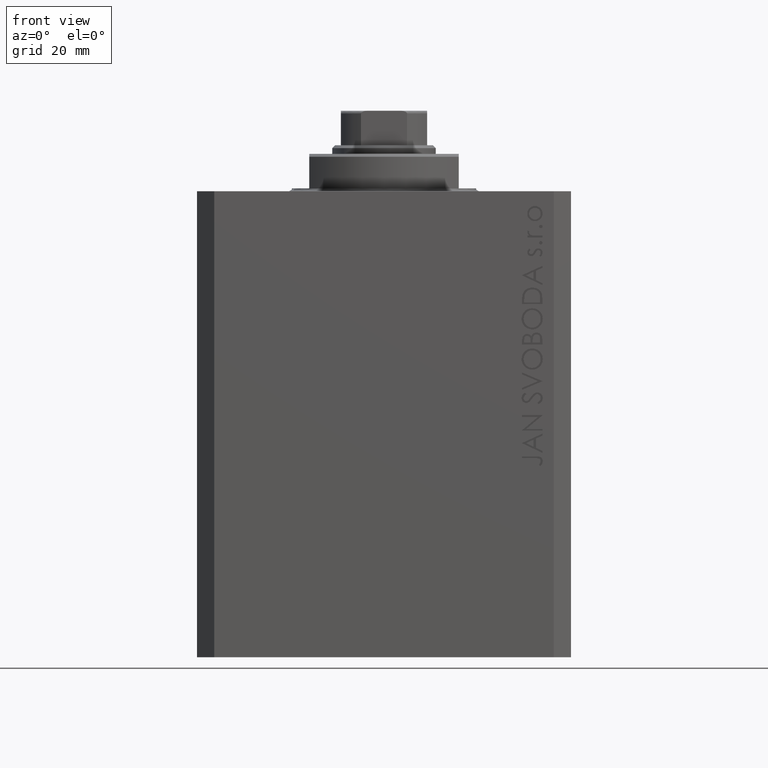
[diagram: clean part render]
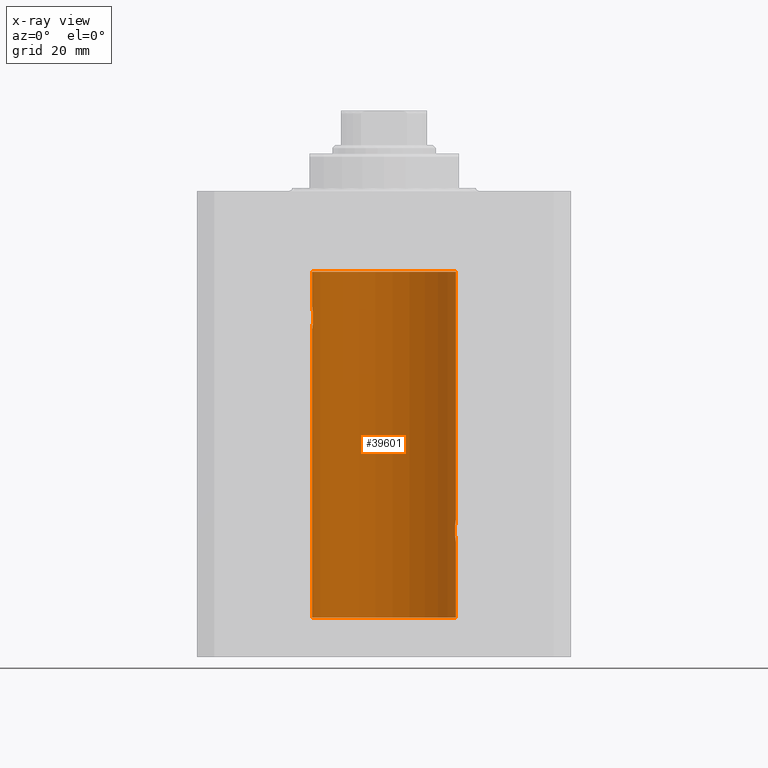
[diagram: x-ray — body ghosted, one internal face saturated and labeled with its STEP entity id]
A machine part, front view, then the same camera in x-ray: the body is ghosted and one INTERNAL B-rep face — a face not visible from any outside direction — is saturated and labeled: STEP entity #39601.
In plain terms, the highlighted cylindrical surface (partial cylindrical patch) has radius 12.5 mm, axis along (0, 0, 1).
Its self-contained STEP definition (entity closure, byte-faithful):
#397 = DIRECTION ( 'NONE',  ( -0.000000000000000000, -0.000000000000000000, 1.000000000000000000 ) ) ;
#454 = ORIENTED_EDGE ( 'NONE', *, *, #22596, .T. ) ;
#797 = CARTESIAN_POINT ( 'NONE',  ( 12.43016561391612029, 1.322713721413891319, -60.50578877836697700 ) ) ;
#1054 = DIRECTION ( 'NONE',  ( -0.000000000000000000, -0.000000000000000000, 1.000000000000000000 ) ) ;
#1593 = VERTEX_POINT ( 'NONE', #6586 ) ;
#1613 = VECTOR ( 'NONE', #9795, 1000.000000000000000 ) ;
#1983 = CARTESIAN_POINT ( 'NONE',  ( -12.33897869807161385, 1.999901172190678089, -21.73788193668374547 ) ) ;
#3208 = DIRECTION ( 'NONE',  ( 0.000000000000000000, 0.000000000000000000, 1.000000000000000000 ) ) ;
#3918 = CARTESIAN_POINT ( 'NONE',  ( 12.46901623405144299, 0.8878913781257963267, -60.79689651717550447 ) ) ;
#4169 = EDGE_CURVE ( 'NONE', #33214, #20910, #21291, .T. ) ;
#4591 = B_SPLINE_CURVE_WITH_KNOTS ( 'NONE', 3,
 ( #11066, #40413, #7487, #22039, #36598, #3918, #33017, #37293, #797, #14899, #29436, #22277, #43991, #22742 ),
 .UNSPECIFIED., .F., .F.,
 ( 4, 2, 2, 2, 2, 2, 4 ),
 ( 4.122900576430715099E-18, 0.0003915305205218091544, 0.0007830610410436140804, 0.001174591561565418952, 0.001566122082087223824, 0.002349183123130847879, 0.003132244164174471934 ),
 .UNSPECIFIED. ) ;
#4650 = CARTESIAN_POINT ( 'NONE',  ( 12.50000000000000000, 0.000000000000000000, -74.09999999999999432 ) ) ;
#4858 = CARTESIAN_POINT ( 'NONE',  ( -12.40913174964213184, 1.507394620545641439, -23.32102833500698225 ) ) ;
#5101 = CARTESIAN_POINT ( 'NONE',  ( -12.48394649977302073, 0.6448065707253024526, -23.89773031393659153 ) ) ;
#5569 = CARTESIAN_POINT ( 'NONE',  ( -12.37018026341338839, 1.797558627508998086, -22.88656313533016373 ) ) ;
#5776 = VECTOR ( 'NONE', #1054, 1000.000000000000000 ) ;
#6586 = CARTESIAN_POINT ( 'NONE',  ( 12.50000000000000000, -7.266276684081261841E-23, -57.00000000000000000 ) ) ;
#6880 = CARTESIAN_POINT ( 'NONE',  ( -12.50000000000000000, 1.530808498934191521E-15, -74.09999999999999432 ) ) ;
#7487 = CARTESIAN_POINT ( 'NONE',  ( 12.49789833780794268, 0.2625555164371063399, -60.98698170822146380 ) ) ;
#8663 = CARTESIAN_POINT ( 'NONE',  ( -12.43034574091277911, 1.321095788880539024, -23.50733550364322255 ) ) ;
#9377 = CARTESIAN_POINT ( 'NONE',  ( -12.50000000000000000, 1.530808426276628993E-15, -23.99999999999999645 ) ) ;
#9795 = DIRECTION ( 'NONE',  ( -0.000000000000000000, -0.000000000000000000, 1.000000000000000000 ) ) ;
#10244 = ORIENTED_EDGE ( 'NONE', *, *, #4169, .F. ) ;
#10436 = VERTEX_POINT ( 'NONE', #28903 ) ;
#10687 = CYLINDRICAL_SURFACE ( 'NONE', #32800, 12.50000000000000000 ) ;
#10784 = CARTESIAN_POINT ( 'NONE',  ( 12.49788668346400122, 0.2632864803365719264, -57.01308975838332316 ) ) ;
#11066 = CARTESIAN_POINT ( 'NONE',  ( 12.50000000000000000, -3.070791583031755813E-15, -61.00000000000000711 ) ) ;
#12494 = CARTESIAN_POINT ( 'NONE',  ( -12.39864157855465088, 1.590288205413973532, -23.21980790594580313 ) ) ;
#12972 = CARTESIAN_POINT ( 'NONE',  ( -12.49788564268284041, 0.2633501011236127343, -23.98690384766255335 ) ) ;
#13115 = DIRECTION ( 'NONE',  ( 1.000000000000000000, 0.000000000000000000, 0.000000000000000000 ) ) ;
#13215 = CARTESIAN_POINT ( 'NONE',  ( -12.33895470450623044, 2.000049200055401766, -22.12992629360264729 ) ) ;
#13299 = EDGE_CURVE ( 'NONE', #45409, #36148, #4591, .T. ) ;
#13399 = VERTEX_POINT ( 'NONE', #23926 ) ;
#13623 = LINE ( 'NONE', #42477, #1613 ) ;
#14238 = ORIENTED_EDGE ( 'NONE', *, *, #37211, .T. ) ;
#14329 = EDGE_CURVE ( 'NONE', #27243, #20910, #22745, .T. ) ;
#14749 = FACE_OUTER_BOUND ( 'NONE', #23037, .T. ) ;
#14899 = CARTESIAN_POINT ( 'NONE',  ( 12.39869754437268767, 1.598954131913735033, -60.22932152813013573 ) ) ;
#15495 = ORIENTED_EDGE ( 'NONE', *, *, #20346, .T. ) ;
#16316 = CARTESIAN_POINT ( 'NONE',  ( -12.49789934882883458, 0.2624928479599910047, -20.01301208516349917 ) ) ;
#16562 = CARTESIAN_POINT ( 'NONE',  ( -12.44082361696003503, 1.219754986802281449, -20.40963319990594016 ) ) ;
#18151 = EDGE_CURVE ( 'NONE', #36148, #1593, #20258, .T. ) ;
#18265 = CARTESIAN_POINT ( 'NONE',  ( 12.50000000000000000, -3.070791583031755813E-15, -61.00000000000000711 ) ) ;
#18888 = CARTESIAN_POINT ( 'NONE',  ( 12.50000000000000000, -7.266276684081261841E-23, -57.00000000000000000 ) ) ;
#19416 = CARTESIAN_POINT ( 'NONE',  ( -12.44076681548080288, 1.220297236145718944, -23.58991408680628155 ) ) ;
#19760 = ORIENTED_EDGE ( 'NONE', *, *, #13299, .T. ) ;
#20258 = B_SPLINE_CURVE_WITH_KNOTS ( 'NONE', 3,
 ( #32963, #43934, #36777, #40119, #22450, #29618, #29150, #43699, #36306, #25560, #32497, #21755, #36078, #40596, #39660, #10784, #33195, #18888 ),
 .UNSPECIFIED., .F., .F.,
 ( 4, 2, 2, 2, 2, 2, 2, 2, 4 ),
 ( 0.003132244164174471934, 0.003523586189974247697, 0.003914928215774023459, 0.004306270241573798355, 0.004697612267373574985, 0.005088954293173349880, 0.005480296318973125642, 0.005871638344772901405, 0.006262980370572677168 ),
 .UNSPECIFIED. ) ;
#20346 = EDGE_CURVE ( 'NONE', #13399, #25780, #31738, .T. ) ;
#20402 = EDGE_CURVE ( 'NONE', #27243, #25780, #20755, .T. ) ;
#20755 = LINE ( 'NONE', #6880, #27932 ) ;
#20910 = VERTEX_POINT ( 'NONE', #28877 ) ;
#21291 = LINE ( 'NONE', #47047, #29739 ) ;
#21755 = CARTESIAN_POINT ( 'NONE',  ( 12.46011632531799407, 1.003644408234889429, -57.26516799687670556 ) ) ;
#22039 = CARTESIAN_POINT ( 'NONE',  ( 12.48989642018887203, 0.5185418732824298438, -60.93601292187604912 ) ) ;
#22277 = CARTESIAN_POINT ( 'NONE',  ( 12.34779119491631150, 1.947363444907014518, -59.52502775168253635 ) ) ;
#22450 = CARTESIAN_POINT ( 'NONE',  ( 12.35520276972935250, 1.897773362058245761, -58.35528278634336630 ) ) ;
#22596 = EDGE_CURVE ( 'NONE', #1593, #13399, #23719, .T. ) ;
#22742 = CARTESIAN_POINT ( 'NONE',  ( 12.33896267925302581, 2.000000000000254463, -59.00000000000000711 ) ) ;
#22745 = B_SPLINE_CURVE_WITH_KNOTS ( 'NONE', 3,
 ( #34440, #45176, #16316, #30850, #41583, #45405, #42065, #16562, #34670, #30384, #22988, #34916, #1983, #13215, #37538, #37768, #44937, #5569, #41350, #12494, #4858, #8663, #19416, #31092, #33962, #5101, #45644, #12972, #27515, #9377 ),
 .UNSPECIFIED., .F., .F.,
 ( 4, 2, 2, 2, 2, 2, 2, 2, 2, 2, 2, 2, 2, 2, 4 ),
 ( 1.814683826656258666E-20, 0.0003914362731607577369, 0.0007828725463215154739, 0.001174308819482273265, 0.001565745092643030948, 0.002348617638964546530, 0.003131490185286061895, 0.003522926458446825216, 0.003914362731607588103, 0.004305799004768351423, 0.004697235277929114744, 0.005088671551089878065, 0.005480107824250641385, 0.005871544097411404706, 0.006262980370572168026 ),
 .UNSPECIFIED. ) ;
#22988 = CARTESIAN_POINT ( 'NONE',  ( -12.37764291807175354, 1.747608771958140794, -20.99316879552500481 ) ) ;
#23037 = EDGE_LOOP ( 'NONE', ( #10244, #44873, #14238, #19760, #23649, #454, #15495, #42558, #36630 ) ) ;
#23649 = ORIENTED_EDGE ( 'NONE', *, *, #18151, .T. ) ;
#23719 = LINE ( 'NONE', #4650, #5776 ) ;
#23926 = CARTESIAN_POINT ( 'NONE',  ( 12.50000000000000000, 0.000000000000000000, -13.99999999999999822 ) ) ;
#24631 = CARTESIAN_POINT ( 'NONE',  ( -12.50000000000000000, 1.530808498934191521E-15, -74.09999999999999432 ) ) ;
#25049 = CIRCLE ( 'NONE', #39528, 12.50000000000000000 ) ;
#25091 = DIRECTION ( 'NONE',  ( -0.000000000000000000, -0.000000000000000000, 1.000000000000000000 ) ) ;
#25368 = DIRECTION ( 'NONE',  ( 1.000000000000000000, 0.000000000000000000, 0.000000000000000000 ) ) ;
#25560 = CARTESIAN_POINT ( 'NONE',  ( 12.43037348241797879, 1.320834183883846435, -57.49243837704293725 ) ) ;
#25780 = VERTEX_POINT ( 'NONE', #36938 ) ;
#27243 = VERTEX_POINT ( 'NONE', #42984 ) ;
#27515 = CARTESIAN_POINT ( 'NONE',  ( -12.50000000000000533, 0.1306394121199390135, -24.00000000000000711 ) ) ;
#27932 = VECTOR ( 'NONE', #39567, 1000.000000000000000 ) ;
#28041 = CARTESIAN_POINT ( 'NONE',  ( 0.000000000000000000, 0.000000000000000000, -74.09999999999999432 ) ) ;
#28877 = CARTESIAN_POINT ( 'NONE',  ( -12.50000000000000000, 1.530808426276628993E-15, -23.99999999999999645 ) ) ;
#28903 = CARTESIAN_POINT ( 'NONE',  ( 12.50000000000000000, 0.000000000000000000, -74.09999999999999432 ) ) ;
#29150 = CARTESIAN_POINT ( 'NONE',  ( 12.37925647381943506, 1.734744884174225898, -57.99620732598649653 ) ) ;
#29282 = DIRECTION ( 'NONE',  ( 1.000000000000000000, 0.000000000000000000, 0.000000000000000000 ) ) ;
#29436 = CARTESIAN_POINT ( 'NONE',  ( 12.37760587642916477, 1.747868572747724114, -60.00639653169001519 ) ) ;
#29618 = CARTESIAN_POINT ( 'NONE',  ( 12.37021546997940113, 1.797317011867410219, -58.11295119741077997 ) ) ;
#29739 = VECTOR ( 'NONE', #25091, 1000.000000000000000 ) ;
#30050 = CARTESIAN_POINT ( 'NONE',  ( 12.33896267925302581, 2.000000000000254463, -59.00000000000000711 ) ) ;
#30384 = CARTESIAN_POINT ( 'NONE',  ( -12.39873273758732175, 1.598680238462371062, -20.77033506126851137 ) ) ;
#30850 = CARTESIAN_POINT ( 'NONE',  ( -12.48990118705761532, 0.5184196815546056047, -20.06395648222637007 ) ) ;
#31092 = CARTESIAN_POINT ( 'NONE',  ( -12.46009879577771606, 1.003863686549169465, -23.73470742397611843 ) ) ;
#31268 = EDGE_CURVE ( 'NONE', #10436, #33214, #25049, .T. ) ;
#31738 = CIRCLE ( 'NONE', #35557, 12.50000000000000000 ) ;
#32497 = CARTESIAN_POINT ( 'NONE',  ( 12.44079117518645461, 1.220047488436375227, -57.40989676335083658 ) ) ;
#32800 = AXIS2_PLACEMENT_3D ( 'NONE', #40020, #397, #29282 ) ;
#32963 = CARTESIAN_POINT ( 'NONE',  ( 12.33896267925302581, 2.000000000000254463, -59.00000000000000711 ) ) ;
#33017 = CARTESIAN_POINT ( 'NONE',  ( 12.46019522898365395, 1.002712894177340885, -60.73540896027603253 ) ) ;
#33195 = CARTESIAN_POINT ( 'NONE',  ( 12.50000000000000000, 0.1306079576516677443, -56.99999999999998579 ) ) ;
#33214 = VERTEX_POINT ( 'NONE', #24631 ) ;
#33962 = CARTESIAN_POINT ( 'NONE',  ( -12.46909283808506430, 0.8868029758979402155, -23.79742491916155345 ) ) ;
#34440 = CARTESIAN_POINT ( 'NONE',  ( -12.50000000000000000, 1.867773856434666690E-17, -20.00000000000000000 ) ) ;
#34670 = CARTESIAN_POINT ( 'NONE',  ( -12.43019346654084956, 1.322451657002078340, -20.49398366327208620 ) ) ;
#34916 = CARTESIAN_POINT ( 'NONE',  ( -12.34781876294798053, 1.947190906025043633, -21.47436412829509678 ) ) ;
#35557 = AXIS2_PLACEMENT_3D ( 'NONE', #38863, #43149, #13115 ) ;
#36078 = CARTESIAN_POINT ( 'NONE',  ( 12.46910683544638232, 0.8866026273585057016, -57.20247863689694867 ) ) ;
#36148 = VERTEX_POINT ( 'NONE', #30050 ) ;
#36306 = CARTESIAN_POINT ( 'NONE',  ( 12.40916530024876963, 1.507117913375724649, -57.67865955049006743 ) ) ;
#36598 = CARTESIAN_POINT ( 'NONE',  ( 12.48390005916862933, 0.6457215011736597843, -60.89742771554266199 ) ) ;
#36630 = ORIENTED_EDGE ( 'NONE', *, *, #14329, .T. ) ;
#36777 = CARTESIAN_POINT ( 'NONE',  ( 12.34110728646152211, 1.986893050944461780, -58.73661347764981855 ) ) ;
#36938 = CARTESIAN_POINT ( 'NONE',  ( -12.50000000000000000, 1.530808498934191521E-15, -13.99999999999999822 ) ) ;
#37211 = EDGE_CURVE ( 'NONE', #10436, #45409, #13623, .T. ) ;
#37293 = CARTESIAN_POINT ( 'NONE',  ( 12.44079900692650931, 1.220007525301745277, -60.59017579083664629 ) ) ;
#37538 = CARTESIAN_POINT ( 'NONE',  ( -12.34109209020652465, 1.986986967296539897, -22.26269462454597914 ) ) ;
#37768 = CARTESIAN_POINT ( 'NONE',  ( -12.34922241902463114, 1.935814255713574239, -22.51937350851555308 ) ) ;
#38863 = CARTESIAN_POINT ( 'NONE',  ( 0.000000000000000000, 0.000000000000000000, -13.99999999999999822 ) ) ;
#39528 = AXIS2_PLACEMENT_3D ( 'NONE', #28041, #3208, #25368 ) ;
#39567 = DIRECTION ( 'NONE',  ( -0.000000000000000000, -0.000000000000000000, 1.000000000000000000 ) ) ;
#39601 = ADVANCED_FACE ( 'NONE', ( #14749 ), #10687, .F. ) ;
#39660 = CARTESIAN_POINT ( 'NONE',  ( 12.48983962833819028, 0.5199974825204922713, -57.06435160808015894 ) ) ;
#40020 = CARTESIAN_POINT ( 'NONE',  ( 0.000000000000000000, 0.000000000000000000, -74.09999999999999432 ) ) ;
#40119 = CARTESIAN_POINT ( 'NONE',  ( 12.34924836377099844, 1.935649219704940194, -58.48002062127163470 ) ) ;
#40413 = CARTESIAN_POINT ( 'NONE',  ( 12.50000000000000178, 0.1324055009716459952, -61.00000000000001421 ) ) ;
#40596 = CARTESIAN_POINT ( 'NONE',  ( 12.48395395845270528, 0.6446573166014708534, -57.10222124213518669 ) ) ;
#41350 = CARTESIAN_POINT ( 'NONE',  ( -12.37922086519035325, 1.734998657226764829, -23.00335814299181436 ) ) ;
#41583 = CARTESIAN_POINT ( 'NONE',  ( -12.48390768591463207, 0.6455696738844916016, -20.10252270298193977 ) ) ;
#42065 = CARTESIAN_POINT ( 'NONE',  ( -12.46021263690096958, 1.002494658017156981, -20.26446744561863156 ) ) ;
#42477 = CARTESIAN_POINT ( 'NONE',  ( 12.50000000000000000, 0.000000000000000000, -74.09999999999999432 ) ) ;
#42558 = ORIENTED_EDGE ( 'NONE', *, *, #20402, .F. ) ;
#42984 = CARTESIAN_POINT ( 'NONE',  ( -12.50000000000000000, 1.867773856434666690E-17, -20.00000000000000000 ) ) ;
#43149 = DIRECTION ( 'NONE',  ( 0.000000000000000000, 0.000000000000000000, 1.000000000000000000 ) ) ;
#43699 = CARTESIAN_POINT ( 'NONE',  ( 12.39867611624532806, 1.590019252152835794, -57.77984495929611342 ) ) ;
#43934 = CARTESIAN_POINT ( 'NONE',  ( 12.33896267925302226, 2.000000000000254463, -58.86934705949919078 ) ) ;
#43991 = CARTESIAN_POINT ( 'NONE',  ( 12.33896267925302581, 2.000000000000254907, -59.26143174220786136 ) ) ;
#44873 = ORIENTED_EDGE ( 'NONE', *, *, #31268, .F. ) ;
#44937 = CARTESIAN_POINT ( 'NONE',  ( -12.35517291625592051, 1.897967064543089721, -22.64415233770293412 ) ) ;
#45176 = CARTESIAN_POINT ( 'NONE',  ( -12.50000000000000000, 0.1323736289504353625, -20.00000000000000000 ) ) ;
#45405 = CARTESIAN_POINT ( 'NONE',  ( -12.46903010196599304, 0.8876934327478135378, -20.20300788371381984 ) ) ;
#45409 = VERTEX_POINT ( 'NONE', #18265 ) ;
#45644 = CARTESIAN_POINT ( 'NONE',  ( -12.48983485452574982, 0.5201193324741355539, -23.93561774521849372 ) ) ;
#47047 = CARTESIAN_POINT ( 'NONE',  ( -12.50000000000000000, 1.530808498934191521E-15, -74.09999999999999432 ) ) ;